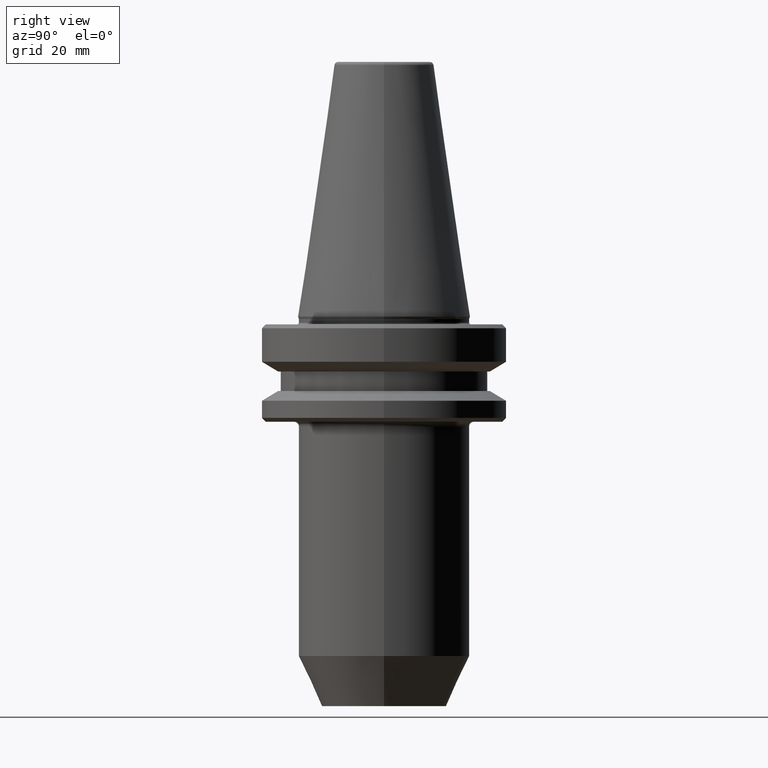
[diagram: clean part render]
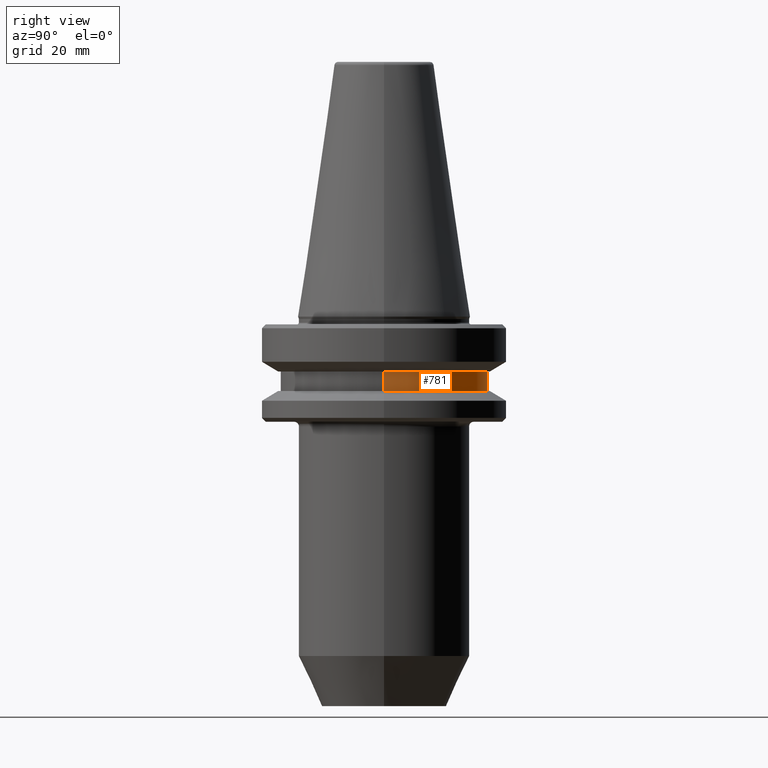
[diagram: same view with one face highlighted and labeled with its STEP entity id]
A machine part, right view. The second image highlights one B-rep face of the part: STEP entity #781.
In plain terms, the highlighted cylindrical surface (partial cylindrical patch) has radius 26.5 mm, axis along (-0, -0, 1).
Its self-contained STEP definition (entity closure, byte-faithful):
#13 = AXIS2_PLACEMENT_3D ( 'NONE', #513, #1043, #580 ) ;
#49 = FACE_OUTER_BOUND ( 'NONE', #825, .T. ) ;
#132 = CARTESIAN_POINT ( 'NONE',  ( -26.50000000000007800, 3.245314017740495600E-015, 82.74845858742440900 ) ) ;
#185 = LINE ( 'NONE', #361, #1000 ) ;
#192 = AXIS2_PLACEMENT_3D ( 'NONE', #989, #762, #928 ) ;
#215 = EDGE_CURVE ( 'NONE', #804, #400, #754, .T. ) ;
#251 = AXIS2_PLACEMENT_3D ( 'NONE', #457, #983, #1050 ) ;
#264 = CYLINDRICAL_SURFACE ( 'NONE', #192, 26.50000000000007800 ) ;
#268 = VERTEX_POINT ( 'NONE', #292 ) ;
#292 = CARTESIAN_POINT ( 'NONE',  ( -26.50000000000007800, 3.245314017740495600E-015, -13.41128678834002700 ) ) ;
#361 = CARTESIAN_POINT ( 'NONE',  ( 26.50000000000007800, 0.0000000000000000000, 82.74845858742440900 ) ) ;
#377 = VERTEX_POINT ( 'NONE', #561 ) ;
#400 = VERTEX_POINT ( 'NONE', #514 ) ;
#413 = EDGE_CURVE ( 'NONE', #377, #268, #833, .T. ) ;
#428 = EDGE_CURVE ( 'NONE', #804, #377, #185, .T. ) ;
#433 = ORIENTED_EDGE ( 'NONE', *, *, #428, .F. ) ;
#457 = CARTESIAN_POINT ( 'NONE',  ( 0.0000000000000000000, 0.0000000000000000000, -13.41128678834002700 ) ) ;
#513 = CARTESIAN_POINT ( 'NONE',  ( 0.0000000000000000000, 0.0000000000000000000, -18.41128678844344800 ) ) ;
#514 = CARTESIAN_POINT ( 'NONE',  ( -26.50000000000007800, 3.245314017740495600E-015, -18.41128678844344800 ) ) ;
#561 = CARTESIAN_POINT ( 'NONE',  ( 26.50000000000007800, 0.0000000000000000000, -13.41128678834002700 ) ) ;
#580 = DIRECTION ( 'NONE',  ( 1.000000000000000000, 0.0000000000000000000, 0.0000000000000000000 ) ) ;
#582 = LINE ( 'NONE', #132, #960 ) ;
#597 = ORIENTED_EDGE ( 'NONE', *, *, #413, .F. ) ;
#754 = CIRCLE ( 'NONE', #13, 26.50000000000007800 ) ;
#758 = ORIENTED_EDGE ( 'NONE', *, *, #896, .T. ) ;
#762 = DIRECTION ( 'NONE',  ( -0.0000000000000000000, -0.0000000000000000000, 1.000000000000000000 ) ) ;
#781 = ADVANCED_FACE ( 'NONE', ( #49 ), #264, .T. ) ;
#804 = VERTEX_POINT ( 'NONE', #844 ) ;
#825 = EDGE_LOOP ( 'NONE', ( #860, #758, #597, #433 ) ) ;
#833 = CIRCLE ( 'NONE', #251, 26.50000000000007800 ) ;
#844 = CARTESIAN_POINT ( 'NONE',  ( 26.50000000000007800, 0.0000000000000000000, -18.41128678844344800 ) ) ;
#860 = ORIENTED_EDGE ( 'NONE', *, *, #215, .T. ) ;
#867 = DIRECTION ( 'NONE',  ( -0.0000000000000000000, -0.0000000000000000000, 1.000000000000000000 ) ) ;
#896 = EDGE_CURVE ( 'NONE', #400, #268, #582, .T. ) ;
#924 = DIRECTION ( 'NONE',  ( -0.0000000000000000000, -0.0000000000000000000, 1.000000000000000000 ) ) ;
#928 = DIRECTION ( 'NONE',  ( 1.000000000000000000, 0.0000000000000000000, 0.0000000000000000000 ) ) ;
#960 = VECTOR ( 'NONE', #867, 1000.000000000000000 ) ;
#983 = DIRECTION ( 'NONE',  ( -0.0000000000000000000, -0.0000000000000000000, 1.000000000000000000 ) ) ;
#989 = CARTESIAN_POINT ( 'NONE',  ( 0.0000000000000000000, 0.0000000000000000000, 82.74845858742440900 ) ) ;
#1000 = VECTOR ( 'NONE', #924, 1000.000000000000000 ) ;
#1043 = DIRECTION ( 'NONE',  ( -0.0000000000000000000, -0.0000000000000000000, 1.000000000000000000 ) ) ;
#1050 = DIRECTION ( 'NONE',  ( 1.000000000000000000, 0.0000000000000000000, 0.0000000000000000000 ) ) ;